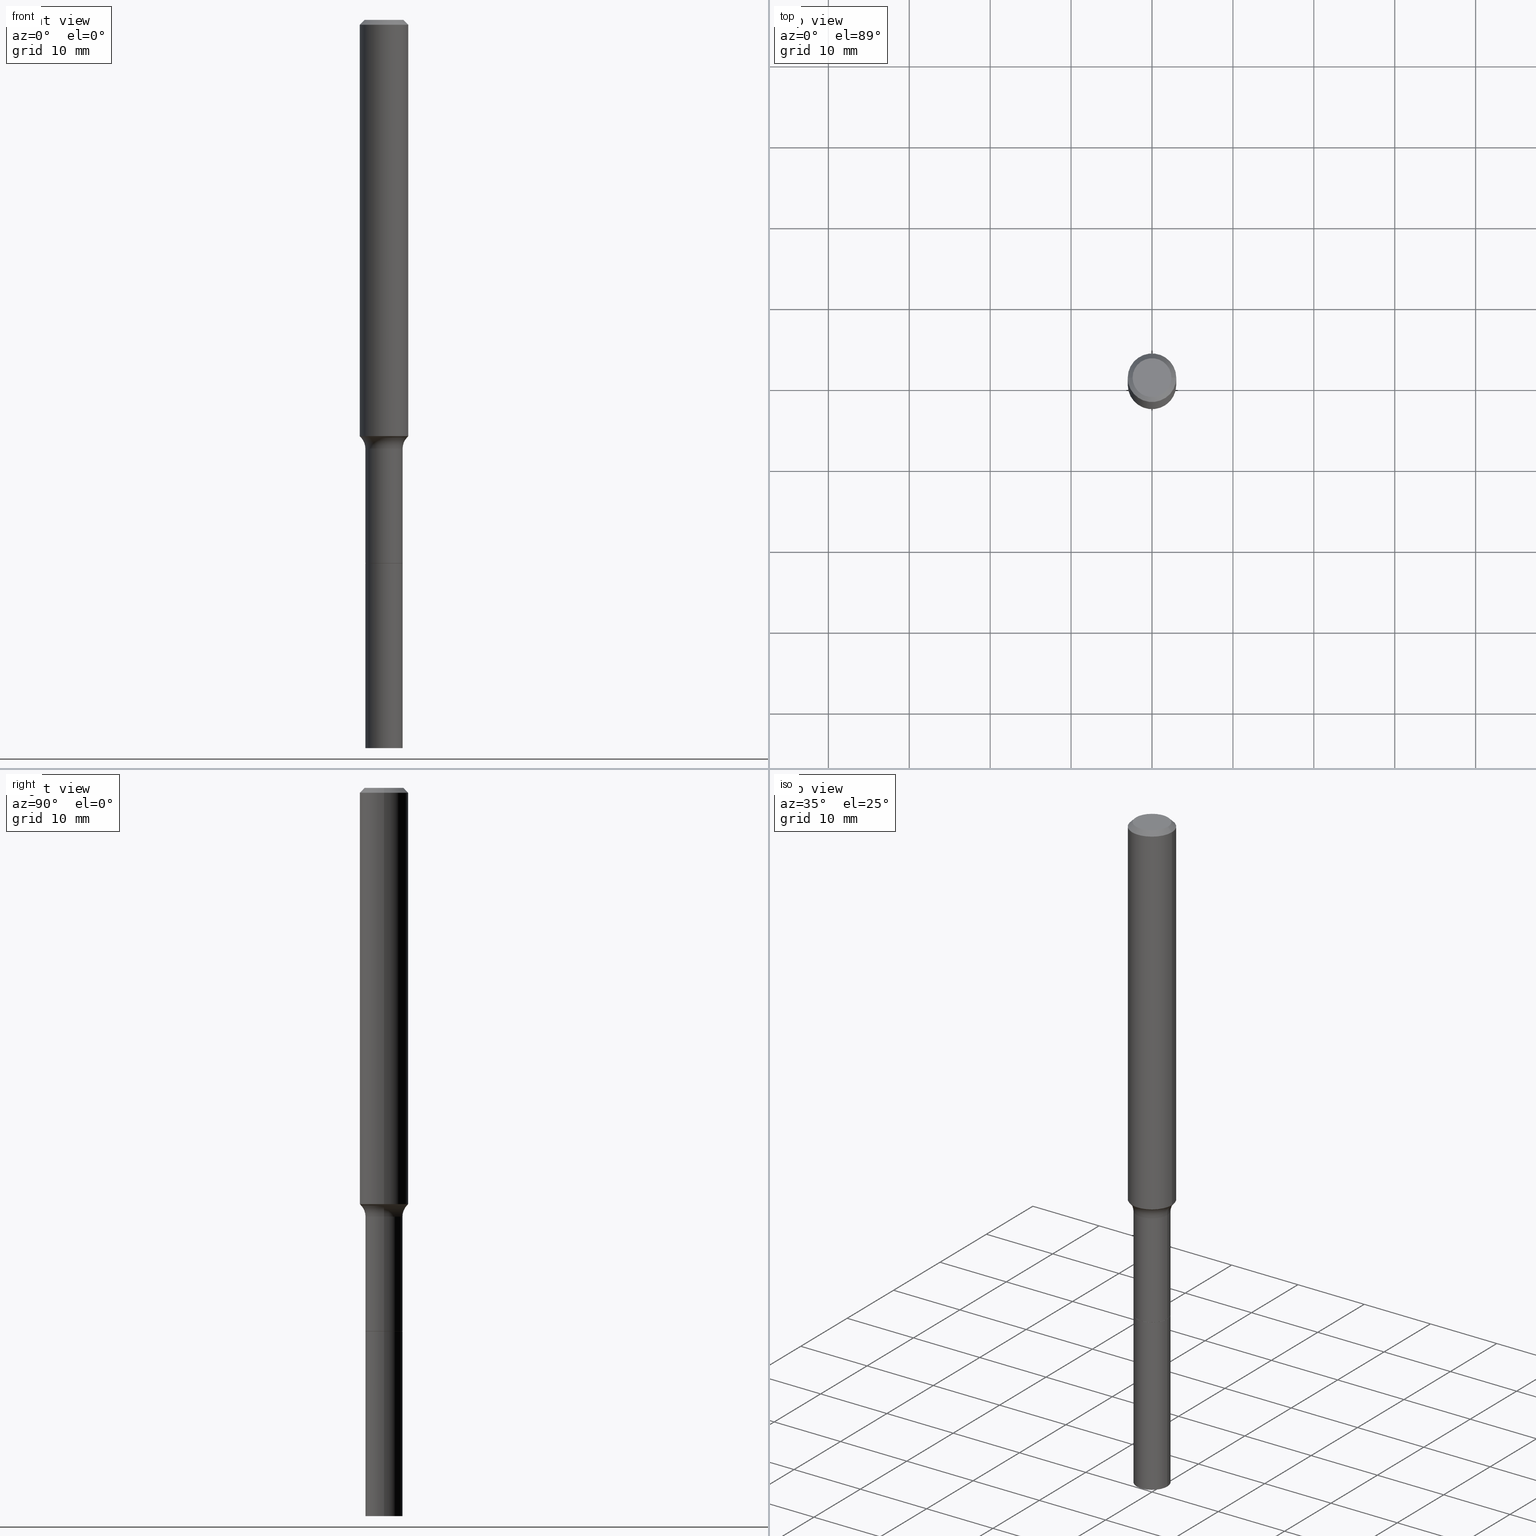
[diagram: canonical four-view strip — front | top / right | iso, engineering-drawing reading convention]
A machine part, canonical four-view strip (front | top / right | iso — engineering-drawing reading convention). The complete STEP part file that produces these views, byte-faithful:
ISO-10303-21;
HEADER;
FILE_DESCRIPTION (( 'STEP AP203' ),
    '1' );
FILE_NAME ('67832.STEP',
    '2025-04-01T15:31:24',
    ( '' ),
    ( '' ),
    'SwSTEP 2.0',
    'SolidWorks 2024',
    '' );
FILE_SCHEMA (( 'CONFIG_CONTROL_DESIGN' ));
ENDSEC;

DATA;
#1 = EDGE_LOOP ( 'NONE', ( #146, #235, #316, #164 ) ) ;
#2 = EDGE_CURVE ( 'NONE', #284, #469, #177, .T. ) ;
#3 = AXIS2_PLACEMENT_3D ( 'NONE', #46, #370, #241 ) ;
#4 = CARTESIAN_POINT ( 'NONE',  ( -0.1181000000000001354, 8.391509709326792818E-16, -5.809262341591050090E-30 ) ) ;
#5 = CIRCLE ( 'NONE', #248, 0.1181000000000002603 ) ;
#6 = VECTOR ( 'NONE', #412, 39.37007874015748143 ) ;
#7 = ORIENTED_EDGE ( 'NONE', *, *, #75, .F. ) ;
#8 = FACE_OUTER_BOUND ( 'NONE', #160, .T. ) ;
#9 = APPROVAL ( #175, 'UNSPECIFIED' ) ;
#10 = FACE_OUTER_BOUND ( 'NONE', #1, .T. ) ;
#11 = ORIENTED_EDGE ( 'NONE', *, *, #135, .T. ) ;
#12 = APPLICATION_PROTOCOL_DEFINITION ( 'international standard', 'config_control_design', 1994, #387 ) ;
#13 = DIRECTION ( 'NONE',  ( -1.000000000000000000, 6.982962677686267499E-15, 0.000000000000000000 ) ) ;
#14 = EDGE_CURVE ( 'NONE', #188, #185, #499, .T. ) ;
#15 = EDGE_LOOP ( 'NONE', ( #250, #478, #154, #506 ) ) ;
#16 = DIRECTION ( 'NONE',  ( 1.000000000000000000, -6.982962677686260400E-15, 0.000000000000000000 ) ) ;
#17 = DIRECTION ( 'NONE',  ( -2.445468806185136597E-29, 3.491481338843145583E-15, 1.000000000000000000 ) ) ;
#18 = DIRECTION ( 'NONE',  ( 0.6819983600624984765, -2.208861293262475014E-15, 0.7313537016191704598 ) ) ;
#19 = CIRCLE ( 'NONE', #403, 0.09055000000000022753 ) ;
#20 = CARTESIAN_POINT ( 'NONE',  ( 8.665029620955794069E-29, -1.237136582792291707E-14, -3.543299999999999894 ) ) ;
#21 = DIRECTION ( 'NONE',  ( 1.000000000000000000, -6.982962677686267499E-15, 0.000000000000000000 ) ) ;
#22 = FACE_OUTER_BOUND ( 'NONE', #435, .T. ) ;
#23 = ORIENTED_EDGE ( 'NONE', *, *, #75, .T. ) ;
#24 = EDGE_CURVE ( 'NONE', #239, #433, #440, .T. ) ;
#25 = CONICAL_SURFACE ( 'NONE', #358, 0.1181000000000000105, 0.7853981633974463916 ) ;
#26 = VECTOR ( 'NONE', #293, 39.37007874015748143 ) ;
#27 = CARTESIAN_POINT ( 'NONE',  ( 0.09055000000000022753, -1.300367309838740854E-14, -3.543299999999999894 ) ) ;
#28 = EDGE_CURVE ( 'NONE', #224, #464, #210, .T. ) ;
#29 = ORIENTED_EDGE ( 'NONE', *, *, #355, .T. ) ;
#30 = CC_DESIGN_PERSON_AND_ORGANIZATION_ASSIGNMENT ( #113, #69, ( #56 ) ) ;
#31 = PERSON_AND_ORGANIZATION ( #351, #222 ) ;
#32 = VECTOR ( 'NONE', #514, 39.37007874015748143 ) ;
#33 = AXIS2_PLACEMENT_3D ( 'NONE', #410, #38, #348 ) ;
#34 = APPROVAL ( #144, 'UNSPECIFIED' ) ;
#35 = ORIENTED_EDGE ( 'NONE', *, *, #151, .T. ) ;
#36 = AXIS2_PLACEMENT_3D ( 'NONE', #109, #148, #317 ) ;
#37 = FACE_OUTER_BOUND ( 'NONE', #74, .T. ) ;
#38 = DIRECTION ( 'NONE',  ( -6.982962677686266711E-15, -1.000000000000000000, 3.491481338843145583E-15 ) ) ;
#39 = ORIENTED_EDGE ( 'NONE', *, *, #186, .T. ) ;
#40 = CARTESIAN_POINT ( 'NONE',  ( 0.000000000000000000, 0.000000000000000000, 0.000000000000000000 ) ) ;
#41 = DIRECTION ( 'NONE',  ( 1.000000000000000000, -6.982962677686260400E-15, 0.000000000000000000 ) ) ;
#42 = ORIENTED_EDGE ( 'NONE', *, *, #28, .F. ) ;
#43 = CARTESIAN_POINT ( 'NONE',  ( 6.466553164195356287E-29, -9.232524104302930594E-15, -2.644299999999999873 ) ) ;
#44 = ORIENTED_EDGE ( 'NONE', *, *, #369, .F. ) ;
#45 = AXIS2_PLACEMENT_3D ( 'NONE', #201, #17, #482 ) ;
#46 = CARTESIAN_POINT ( 'NONE',  ( 6.466553164195356287E-29, -9.232524104302930594E-15, -2.644299999999999873 ) ) ;
#47 = AXIS2_PLACEMENT_3D ( 'NONE', #404, #134, #451 ) ;
#48 = FACE_OUTER_BOUND ( 'NONE', #279, .T. ) ;
#49 = ORIENTED_EDGE ( 'NONE', *, *, #14, .T. ) ;
#50 = EDGE_CURVE ( 'NONE', #185, #224, #343, .T. ) ;
#51 = EDGE_LOOP ( 'NONE', ( #515, #408, #401, #472 ) ) ;
#52 = DIRECTION ( 'NONE',  ( -2.445468806185136597E-29, 3.491481338843145583E-15, 1.000000000000000000 ) ) ;
#53 = LINE ( 'NONE', #128, #26 ) ;
#54 = VERTEX_POINT ( 'NONE', #307 ) ;
#55 = CIRCLE ( 'NONE', #350, 0.09005000000000000504 ) ;
#56 = SECURITY_CLASSIFICATION ( '', '', #147 ) ;
#57 = CARTESIAN_POINT ( 'NONE',  ( 5.101981570344049922E-29, -7.284277517228453725E-15, -2.086299999999999599 ) ) ;
#58 = PLANE ( 'NONE',  #99 ) ;
#59 = VECTOR ( 'NONE', #138, 39.37007874015748143 ) ;
#60 = LOCAL_TIME ( 11, 31, 24.00000000000000000, #265 ) ;
#61 = ADVANCED_FACE ( 'NONE', ( #439 ), #82, .T. ) ;
#62 = CARTESIAN_POINT ( 'NONE',  ( 5.101981570344049922E-29, -7.284277517228453725E-15, -2.086299999999999599 ) ) ;
#63 = CARTESIAN_POINT ( 'NONE',  ( 6.466553164195356287E-29, -9.232524104302930594E-15, -2.644299999999999873 ) ) ;
#64 = DIRECTION ( 'NONE',  ( 1.000000000000000000, -6.982962677686270655E-15, 0.000000000000000000 ) ) ;
#65 = AXIS2_PLACEMENT_3D ( 'NONE', #72, #84, #415 ) ;
#66 = VECTOR ( 'NONE', #142, 39.37007874015748854 ) ;
#67 = CC_DESIGN_PERSON_AND_ORGANIZATION_ASSIGNMENT ( #373, #498, ( #500 ) ) ;
#68 = ORIENTED_EDGE ( 'NONE', *, *, #288, .T. ) ;
#69 = PERSON_AND_ORGANIZATION_ROLE ( 'classification_officer' ) ;
#70 = CARTESIAN_POINT ( 'NONE',  ( 7.545787641473140628E-46, -1.077338491108201769E-31, -3.085620075131671975E-17 ) ) ;
#71 = ORIENTED_EDGE ( 'NONE', *, *, #304, .T. ) ;
#72 = CARTESIAN_POINT ( 'NONE',  ( -0.1705499999999999516, -6.072446881389604582E-15, -2.086299999999999599 ) ) ;
#73 = CARTESIAN_POINT ( 'NONE',  ( 0.09005000000000000504, -9.861339893428579057E-15, -2.644299999999999873 ) ) ;
#74 = EDGE_LOOP ( 'NONE', ( #245, #39, #171, #437 ) ) ;
#75 = EDGE_CURVE ( 'NONE', #426, #366, #291, .T. ) ;
#76 = CIRCLE ( 'NONE', #368, 0.09055000000000022753 ) ;
#77 = ORIENTED_EDGE ( 'NONE', *, *, #193, .T. ) ;
#78 = VERTEX_POINT ( 'NONE', #130 ) ;
#79 = EDGE_CURVE ( 'NONE', #224, #78, #311, .T. ) ;
#80 = ORIENTED_EDGE ( 'NONE', *, *, #212, .T. ) ;
#81 = AXIS2_PLACEMENT_3D ( 'NONE', #70, #102, #392 ) ;
#82 = CYLINDRICAL_SURFACE ( 'NONE', #205, 0.09055000000000011651 ) ;
#83 = APPROVAL_DATE_TIME ( #302, #9 ) ;
#84 = DIRECTION ( 'NONE',  ( 7.105427357601001859E-15, 1.000000000000000000, -3.491481338843145583E-15 ) ) ;
#85 = DIRECTION ( 'NONE',  ( -2.445468806185136597E-29, 3.491481338843145583E-15, 1.000000000000000000 ) ) ;
#86 = FACE_OUTER_BOUND ( 'NONE', #207, .T. ) ;
#87 = COORDINATED_UNIVERSAL_TIME_OFFSET ( 5, 0, .BEHIND. ) ;
#88 = LINE ( 'NONE', #256, #6 ) ;
#89 = EDGE_CURVE ( 'NONE', #433, #239, #137, .T. ) ;
#90 = EDGE_LOOP ( 'NONE', ( #393, #29, #80, #184 ) ) ;
#91 = CONICAL_SURFACE ( 'NONE', #388, 0.1120417038704662610, 0.7504915783575617505 ) ;
#92 = VECTOR ( 'NONE', #509, 39.37007874015748143 ) ;
#93 =( NAMED_UNIT ( * ) PLANE_ANGLE_UNIT ( ) SI_UNIT ( $, .RADIAN. ) );
#94 = ORIENTED_EDGE ( 'NONE', *, *, #326, .F. ) ;
#95 = PERSON_AND_ORGANIZATION_ROLE ( 'creator' ) ;
#96 = DATE_AND_TIME ( #217, #197 ) ;
#97 = EDGE_CURVE ( 'NONE', #54, #399, #303, .T. ) ;
#98 = DATE_TIME_ROLE ( 'creation_date' ) ;
#99 = AXIS2_PLACEMENT_3D ( 'NONE', #219, #378, #208 ) ;
#100 = FACE_OUTER_BOUND ( 'NONE', #90, .T. ) ;
#101 = DIRECTION ( 'NONE',  ( 1.000000000000000000, -6.982962677686266711E-15, 4.876176775795936353E-29 ) ) ;
#102 = DIRECTION ( 'NONE',  ( -2.445468806185136597E-29, 3.491481338843145583E-15, 1.000000000000000000 ) ) ;
#103 = APPROVAL_ROLE ( '' ) ;
#104 = EDGE_CURVE ( 'NONE', #284, #396, #272, .T. ) ;
#105 = EDGE_LOOP ( 'NONE', ( #156, #112 ) ) ;
#106 = AXIS2_PLACEMENT_3D ( 'NONE', #448, #253, #490 ) ;
#107 = TOROIDAL_SURFACE ( 'NONE', #129, 0.1705499999999999516, 0.07999999999999996003 ) ;
#108 = APPROVAL ( #312, 'UNSPECIFIED' ) ;
#109 = CARTESIAN_POINT ( 'NONE',  ( 6.466553164195356287E-29, -9.232524104302930594E-15, -2.644299999999999873 ) ) ;
#110 = EDGE_LOOP ( 'NONE', ( #120, #11, #68, #377 ) ) ;
#111 = CARTESIAN_POINT ( 'NONE',  ( -0.09005000000000000504, -8.590031143576848647E-15, -2.644299999999999873 ) ) ;
#112 = ORIENTED_EDGE ( 'NONE', *, *, #97, .T. ) ;
#113 = PERSON_AND_ORGANIZATION ( #351, #222 ) ;
#114 = ADVANCED_FACE ( 'NONE', ( #86 ), #25, .T. ) ;
#115 = CARTESIAN_POINT ( 'NONE',  ( 0.09054999999999997773, -6.323072704644912724E-16, 4.415378070483218706E-30 ) ) ;
#116 = ORIENTED_EDGE ( 'NONE', *, *, #97, .F. ) ;
#117 = FACE_OUTER_BOUND ( 'NONE', #336, .T. ) ;
#118 = AXIS2_PLACEMENT_3D ( 'NONE', #227, #356, #505 ) ;
#119 = CIRCLE ( 'NONE', #486, 0.1120417038704662610 ) ;
#120 = ORIENTED_EDGE ( 'NONE', *, *, #50, .F. ) ;
#121 = ADVANCED_FACE ( 'NONE', ( #215 ), #484, .T. ) ;
#122 = ORIENTED_EDGE ( 'NONE', *, *, #212, .F. ) ;
#123 = CARTESIAN_POINT ( 'NONE',  ( 0.000000000000000000, 0.000000000000000000, 0.000000000000000000 ) ) ;
#124 = DIRECTION ( 'NONE',  ( -1.000000000000000000, 6.982962677686265922E-15, -4.876176775795935793E-29 ) ) ;
#125 = DIRECTION ( 'NONE',  ( -2.445468806185136877E-29, 3.491481338843145188E-15, 1.000000000000000000 ) ) ;
#126 = DIRECTION ( 'NONE',  ( -2.445468806185136597E-29, 3.491481338843145583E-15, 1.000000000000000000 ) ) ;
#127 = CYLINDRICAL_SURFACE ( 'NONE', #47, 0.09055000000000011651 ) ;
#128 = CARTESIAN_POINT ( 'NONE',  ( 0.09055000000000011651, -9.864831374767423641E-15, -2.644299999999999873 ) ) ;
#129 = AXIS2_PLACEMENT_3D ( 'NONE', #62, #226, #349 ) ;
#130 = CARTESIAN_POINT ( 'NONE',  ( 0.09055000000000000548, -9.863085634098001349E-15, -2.643799999999999706 ) ) ;
#131 = CARTESIAN_POINT ( 'NONE',  ( -0.09055000000000000548, -1.015854851888215298E-14, -2.644299999999999873 ) ) ;
#132 = FACE_OUTER_BOUND ( 'NONE', #365, .T. ) ;
#133 = CARTESIAN_POINT ( 'NONE',  ( 0.1120417038704662610, -7.876165789917910657E-15, -2.031740131194999854 ) ) ;
#134 = DIRECTION ( 'NONE',  ( -2.445468806185136597E-29, 3.491481338843145583E-15, 1.000000000000000000 ) ) ;
#135 = EDGE_CURVE ( 'NONE', #185, #188, #55, .T. ) ;
#136 = DIRECTION ( 'NONE',  ( -2.445468806185136597E-29, 3.491481338843145583E-15, 1.000000000000000000 ) ) ;
#137 = CIRCLE ( 'NONE', #475, 0.1181000000000000105 ) ;
#138 = DIRECTION ( 'NONE',  ( -0.7071067811864267805, 7.493145998869918709E-15, 0.7071067811866682540 ) ) ;
#139 = AXIS2_PLACEMENT_3D ( 'NONE', #259, #295, #447 ) ;
#140 = DIRECTION ( 'NONE',  ( 1.000000000000000000, -6.982962677686265922E-15, 4.876176775795935793E-29 ) ) ;
#141 = EDGE_CURVE ( 'NONE', #78, #224, #159, .T. ) ;
#142 = DIRECTION ( 'NONE',  ( -0.6819983600624984765, 7.399397606724286576E-15, 0.7313537016191704598 ) ) ;
#143 =( GEOMETRIC_REPRESENTATION_CONTEXT ( 3 ) GLOBAL_UNCERTAINTY_ASSIGNED_CONTEXT ( ( #200 ) ) GLOBAL_UNIT_ASSIGNED_CONTEXT ( ( #488, #93, #495 ) ) REPRESENTATION_CONTEXT ( 'NONE', 'WORKASPACE' ) );
#144 = APPROVAL_STATUS ( 'not_yet_approved' ) ;
#145 = ADVANCED_FACE ( 'NONE', ( #37 ), #249, .T. ) ;
#146 = ORIENTED_EDGE ( 'NONE', *, *, #304, .F. ) ;
#147 = SECURITY_CLASSIFICATION_LEVEL ( 'unclassified' ) ;
#148 = DIRECTION ( 'NONE',  ( -2.445468806185136597E-29, 3.491481338843145583E-15, 1.000000000000000000 ) ) ;
#149 = CLOSED_SHELL ( 'NONE', ( #121, #394, #436, #234, #496, #204, #422, #346, #170, #145, #114, #418, #218, #342 ) ) ;
#150 = AXIS2_PLACEMENT_3D ( 'NONE', #161, #280, #124 ) ;
#151 = EDGE_CURVE ( 'NONE', #78, #502, #194, .T. ) ;
#152 = ORIENTED_EDGE ( 'NONE', *, *, #326, .T. ) ;
#153 = CARTESIAN_POINT ( 'NONE',  ( 4.952669569388828117E-29, -7.071099551644942369E-15, -2.025243403989624102 ) ) ;
#154 = ORIENTED_EDGE ( 'NONE', *, *, #446, .F. ) ;
#155 = DIRECTION ( 'NONE',  ( -2.445468806185136597E-29, 3.491481338843145583E-15, 1.000000000000000000 ) ) ;
#156 = ORIENTED_EDGE ( 'NONE', *, *, #313, .T. ) ;
#157 = PLANE ( 'NONE',  #150 ) ;
#158 = DESIGN_CONTEXT ( 'detailed design', #458, 'design' ) ;
#159 = CIRCLE ( 'NONE', #118, 0.09055000000000000548 ) ;
#160 = EDGE_LOOP ( 'NONE', ( #116, #363, #400, #518 ) ) ;
#161 = CARTESIAN_POINT ( 'NONE',  ( 3.772893820736570314E-46, -5.386692455541008845E-32, -1.542810037565835988E-17 ) ) ;
#162 = ADVANCED_FACE ( 'NONE', ( #398 ), #198, .F. ) ;
#163 = CARTESIAN_POINT ( 'NONE',  ( 8.665029620955794069E-29, -1.237136582792291707E-14, -3.543299999999999894 ) ) ;
#164 = ORIENTED_EDGE ( 'NONE', *, *, #186, .F. ) ;
#165 = APPROVAL_ROLE ( '' ) ;
#166 = CARTESIAN_POINT ( 'NONE',  ( 0.09055000000000000548, -9.864831374767423641E-15, -2.644299999999999873 ) ) ;
#167 = DIRECTION ( 'NONE',  ( 1.000000000000000000, -6.982962677686269077E-15, 4.883557194083113462E-29 ) ) ;
#168 = CARTESIAN_POINT ( 'NONE',  ( 6.466553164195356287E-29, -9.232524104302930594E-15, -2.644299999999999873 ) ) ;
#169 = VECTOR ( 'NONE', #289, 39.37007874015748143 ) ;
#170 = ADVANCED_FACE ( 'NONE', ( #10 ), #91, .T. ) ;
#171 = ORIENTED_EDGE ( 'NONE', *, *, #310, .T. ) ;
#172 = DIRECTION ( 'NONE',  ( -2.445468806185136597E-29, 3.491481338843145583E-15, 1.000000000000000000 ) ) ;
#173 = DIRECTION ( 'NONE',  ( -2.438088387897960049E-29, 3.491481338843145188E-15, 1.000000000000000000 ) ) ;
#174 = DIRECTION ( 'NONE',  ( -2.445468806185136597E-29, 3.491481338843145583E-15, 1.000000000000000000 ) ) ;
#175 = APPROVAL_STATUS ( 'not_yet_approved' ) ;
#176 = CARTESIAN_POINT ( 'NONE',  ( -0.09055000000000000548, -7.614131493200209369E-15, -2.643799999999999706 ) ) ;
#177 = LINE ( 'NONE', #133, #381 ) ;
#178 = EDGE_CURVE ( 'NONE', #473, #433, #480, .T. ) ;
#179 = PLANE ( 'NONE',  #180 ) ;
#180 = AXIS2_PLACEMENT_3D ( 'NONE', #299, #173, #140 ) ;
#181 = CARTESIAN_POINT ( 'NONE',  ( 6.466553164195356287E-29, -9.232524104302930594E-15, -2.644299999999999873 ) ) ;
#182 = APPROVAL_DATE_TIME ( #262, #34 ) ;
#183 = CARTESIAN_POINT ( 'NONE',  ( 0.000000000000000000, 0.000000000000000000, 0.000000000000000000 ) ) ;
#184 = ORIENTED_EDGE ( 'NONE', *, *, #267, .F. ) ;
#185 = VERTEX_POINT ( 'NONE', #111 ) ;
#186 = EDGE_CURVE ( 'NONE', #473, #469, #5, .T. ) ;
#187 = LINE ( 'NONE', #233, #455 ) ;
#188 = VERTEX_POINT ( 'NONE', #73 ) ;
#189 = DATE_TIME_ROLE ( 'classification_date' ) ;
#190 = APPROVAL_PERSON_ORGANIZATION ( #31, #34, #354 ) ;
#191 = ORIENTED_EDGE ( 'NONE', *, *, #288, .F. ) ;
#192 = LINE ( 'NONE', #462, #66 ) ;
#193 = EDGE_CURVE ( 'NONE', #399, #433, #278, .T. ) ;
#194 = LINE ( 'NONE', #115, #32 ) ;
#195 = CARTESIAN_POINT ( 'NONE',  ( 0.1181000000000000105, -8.926936027602935883E-16, -0.02362000000000015823 ) ) ;
#196 = EDGE_LOOP ( 'NONE', ( #49, #332, #329, #191 ) ) ;
#197 = LOCAL_TIME ( 11, 31, 24.00000000000000000, #270 ) ;
#198 = PLANE ( 'NONE',  #3 ) ;
#199 = ORIENTED_EDGE ( 'NONE', *, *, #362, .F. ) ;
#200 = UNCERTAINTY_MEASURE_WITH_UNIT (LENGTH_MEASURE( 1.000000000000000082E-05 ), #488, 'distance_accuracy_value', 'NONE');
#201 = CARTESIAN_POINT ( 'NONE',  ( 0.000000000000000000, 0.000000000000000000, 0.000000000000000000 ) ) ;
#202 = ORIENTED_EDGE ( 'NONE', *, *, #334, .F. ) ;
#203 = EDGE_LOOP ( 'NONE', ( #379, #371, #7, #360 ) ) ;
#204 = ADVANCED_FACE ( 'NONE', ( #323 ), #430, .T. ) ;
#205 = AXIS2_PLACEMENT_3D ( 'NONE', #168, #52, #374 ) ;
#206 = VECTOR ( 'NONE', #324, 39.37007874015748143 ) ;
#207 = EDGE_LOOP ( 'NONE', ( #202, #428, #77, #225 ) ) ;
#208 = DIRECTION ( 'NONE',  ( -1.000000000000000000, 6.982962677686265922E-15, -4.876176775795935793E-29 ) ) ;
#209 = CARTESIAN_POINT ( 'NONE',  ( 0.1181000000000000105, -9.071566814582239172E-16, -0.02362000000000015823 ) ) ;
#210 = LINE ( 'NONE', #452, #169 ) ;
#211 = DIRECTION ( 'NONE',  ( 1.000000000000000000, 0.000000000000000000, 0.000000000000000000 ) ) ;
#212 = EDGE_CURVE ( 'NONE', #464, #502, #367, .T. ) ;
#213 = CARTESIAN_POINT ( 'NONE',  ( 7.545787641473140628E-46, -1.077338491108201769E-31, -3.085620075131671975E-17 ) ) ;
#214 = AXIS2_PLACEMENT_3D ( 'NONE', #123, #337, #211 ) ;
#215 = FACE_OUTER_BOUND ( 'NONE', #196, .T. ) ;
#216 = ORIENTED_EDGE ( 'NONE', *, *, #2, .F. ) ;
#217 = CALENDAR_DATE ( 2025, 1, 4 ) ;
#218 = ADVANCED_FACE ( 'NONE', ( #132 ), #179, .F. ) ;
#219 = CARTESIAN_POINT ( 'NONE',  ( 8.665029620955794069E-29, -1.237136582792291707E-14, -3.543299999999999894 ) ) ;
#220 = ORIENTED_EDGE ( 'NONE', *, *, #251, .T. ) ;
#221 = CARTESIAN_POINT ( 'NONE',  ( -0.1181000000000002603, -6.231948580712261806E-15, -2.025243403989624102 ) ) ;
#222 = ORGANIZATION ( 'UNSPECIFIED', 'UNSPECIFIED', '' ) ;
#223 = CC_DESIGN_APPROVAL ( #34, ( #56 ) ) ;
#224 = VERTEX_POINT ( 'NONE', #176 ) ;
#225 = ORIENTED_EDGE ( 'NONE', *, *, #89, .T. ) ;
#226 = DIRECTION ( 'NONE',  ( -2.445468806185136597E-29, 3.491481338843145583E-15, 1.000000000000000000 ) ) ;
#227 = CARTESIAN_POINT ( 'NONE',  ( 6.465330429792263485E-29, -9.230778363633508302E-15, -2.643799999999999706 ) ) ;
#228 = VECTOR ( 'NONE', #517, 39.37007874015748143 ) ;
#229 = CARTESIAN_POINT ( 'NONE',  ( 0.1120417038704663026, -7.876165789917910657E-15, -2.031740131194999854 ) ) ;
#230 = VECTOR ( 'NONE', #125, 39.37007874015748143 ) ;
#231 = CONICAL_SURFACE ( 'NONE', #305, 0.09005000000000000504, 0.7853981633972775267 ) ;
#232 = CARTESIAN_POINT ( 'NONE',  ( -0.09054999999999993610, -7.614131493200210946E-15, -2.086299999999999599 ) ) ;
#233 = CARTESIAN_POINT ( 'NONE',  ( 0.09005000000000000504, -9.861339893428579057E-15, -2.644299999999999873 ) ) ;
#234 = ADVANCED_FACE ( 'NONE', ( #308 ), #330, .T. ) ;
#235 = ORIENTED_EDGE ( 'NONE', *, *, #271, .T. ) ;
#236 = ORIENTED_EDGE ( 'NONE', *, *, #104, .T. ) ;
#237 = DIRECTION ( 'NONE',  ( 1.000000000000000000, -6.982962677686266711E-15, 4.876176775795935793E-29 ) ) ;
#238 = AXIS2_PLACEMENT_3D ( 'NONE', #294, #136, #483 ) ;
#239 = VERTEX_POINT ( 'NONE', #209 ) ;
#240 = FACE_OUTER_BOUND ( 'NONE', #51, .T. ) ;
#241 = DIRECTION ( 'NONE',  ( -1.000000000000000000, 6.982962677686265922E-15, -4.876176775795935793E-29 ) ) ;
#242 = ORIENTED_EDGE ( 'NONE', *, *, #507, .T. ) ;
#243 = PRODUCT_DEFINITION_SHAPE ( 'NONE', 'NONE',  #309 ) ;
#244 = CARTESIAN_POINT ( 'NONE',  ( 0.000000000000000000, 0.000000000000000000, 0.000000000000000000 ) ) ;
#245 = ORIENTED_EDGE ( 'NONE', *, *, #178, .F. ) ;
#246 = PERSON_AND_ORGANIZATION ( #351, #222 ) ;
#247 = CARTESIAN_POINT ( 'NONE',  ( -0.1120417038704663026, -6.297678565572625919E-15, -2.031740131194999854 ) ) ;
#248 = AXIS2_PLACEMENT_3D ( 'NONE', #153, #275, #427 ) ;
#249 = CYLINDRICAL_SURFACE ( 'NONE', #344, 0.1181000000000001354 ) ;
#250 = ORIENTED_EDGE ( 'NONE', *, *, #141, .T. ) ;
#251 = EDGE_CURVE ( 'NONE', #481, #426, #53, .T. ) ;
#252 = DIRECTION ( 'NONE',  ( 1.000000000000000000, -6.982962677686277755E-15, 0.000000000000000000 ) ) ;
#253 = DIRECTION ( 'NONE',  ( -2.445468806185136597E-29, 3.491481338843145583E-15, 1.000000000000000000 ) ) ;
#254 = DIRECTION ( 'NONE',  ( 2.445468806185136597E-29, -3.491481338843145583E-15, -1.000000000000000000 ) ) ;
#255 = CALENDAR_DATE ( 2025, 1, 4 ) ;
#256 = CARTESIAN_POINT ( 'NONE',  ( -0.09055000000000011651, -8.589127657072158949E-15, -2.644299999999999873 ) ) ;
#257 = AXIS2_PLACEMENT_3D ( 'NONE', #297, #449, #341 ) ;
#258 = ORIENTED_EDGE ( 'NONE', *, *, #380, .F. ) ;
#259 = CARTESIAN_POINT ( 'NONE',  ( 4.952669569388828117E-29, -7.071099551644942369E-15, -2.025243403989624102 ) ) ;
#260 = ADVANCED_FACE ( 'NONE', ( #444 ), #127, .T. ) ;
#261 = DIRECTION ( 'NONE',  ( 1.000000000000000000, -6.982962677686260400E-15, 0.000000000000000000 ) ) ;
#262 = DATE_AND_TIME ( #340, #476 ) ;
#263 = APPROVAL_DATE_TIME ( #96, #108 ) ;
#264 = CIRCLE ( 'NONE', #65, 0.07999999999999996003 ) ;
#265 = COORDINATED_UNIVERSAL_TIME_OFFSET ( 5, 0, .BEHIND. ) ;
#266 = DIRECTION ( 'NONE',  ( -2.445468806185136597E-29, 3.491481338843145583E-15, 1.000000000000000000 ) ) ;
#267 = EDGE_CURVE ( 'NONE', #284, #502, #345, .T. ) ;
#268 = CARTESIAN_POINT ( 'NONE',  ( 0.09054999999999993610, -7.916584787692945195E-15, -2.086299999999999599 ) ) ;
#269 = DIRECTION ( 'NONE',  ( 1.000000000000000000, -6.982962677686260400E-15, 0.000000000000000000 ) ) ;
#270 = COORDINATED_UNIVERSAL_TIME_OFFSET ( 5, 0, .BEHIND. ) ;
#271 = EDGE_CURVE ( 'NONE', #396, #284, #119, .T. ) ;
#272 = CIRCLE ( 'NONE', #257, 0.1120417038704662610 ) ;
#273 = CONICAL_SURFACE ( 'NONE', #306, 0.1181000000000000105, 0.7853981633974463916 ) ;
#274 = VERTEX_POINT ( 'NONE', #391 ) ;
#275 = DIRECTION ( 'NONE',  ( -2.445468806185136597E-29, 3.491481338843145583E-15, 1.000000000000000000 ) ) ;
#276 = EDGE_LOOP ( 'NONE', ( #23, #152 ) ) ;
#277 = FACE_OUTER_BOUND ( 'NONE', #105, .T. ) ;
#278 = LINE ( 'NONE', #361, #228 ) ;
#279 = EDGE_LOOP ( 'NONE', ( #477, #322, #417, #405 ) ) ;
#280 = DIRECTION ( 'NONE',  ( 2.438088387897960049E-29, -3.491481338843145188E-15, -1.000000000000000000 ) ) ;
#281 = AXIS2_PLACEMENT_3D ( 'NONE', #181, #266, #269 ) ;
#282 = CC_DESIGN_APPROVAL ( #108, ( #500 ) ) ;
#283 = FACE_OUTER_BOUND ( 'NONE', #110, .T. ) ;
#284 = VERTEX_POINT ( 'NONE', #229 ) ;
#285 = DIRECTION ( 'NONE',  ( 1.000000000000000000, -6.982962677686260400E-15, 0.000000000000000000 ) ) ;
#286 = ORIENTED_EDGE ( 'NONE', *, *, #135, .F. ) ;
#287 = DIRECTION ( 'NONE',  ( -2.445468806185136597E-29, 3.491481338843145583E-15, 1.000000000000000000 ) ) ;
#288 = EDGE_CURVE ( 'NONE', #188, #78, #187, .T. ) ;
#289 = DIRECTION ( 'NONE',  ( -2.445468806185136877E-29, 3.491481338843145188E-15, 1.000000000000000000 ) ) ;
#290 = CARTESIAN_POINT ( 'NONE',  ( -0.09447999999999998066, 7.009847083995354710E-16, -3.085620075132147757E-17 ) ) ;
#291 = CIRCLE ( 'NONE', #238, 0.09055000000000000548 ) ;
#292 = LOCAL_TIME ( 11, 31, 24.00000000000000000, #87 ) ;
#293 = DIRECTION ( 'NONE',  ( -2.445468806185136877E-29, 3.491481338843145188E-15, 1.000000000000000000 ) ) ;
#294 = CARTESIAN_POINT ( 'NONE',  ( 6.466553164195356287E-29, -9.232524104302930594E-15, -2.644299999999999873 ) ) ;
#295 = DIRECTION ( 'NONE',  ( -2.445468806185136597E-29, 3.491481338843145583E-15, 1.000000000000000000 ) ) ;
#296 = DIRECTION ( 'NONE',  ( 1.000000000000000000, -6.982962677686260400E-15, 0.000000000000000000 ) ) ;
#297 = CARTESIAN_POINT ( 'NONE',  ( 4.968557113111869591E-29, -7.093782753446066454E-15, -2.031740131194999854 ) ) ;
#298 = PERSON_AND_ORGANIZATION ( #351, #222 ) ;
#299 = CARTESIAN_POINT ( 'NONE',  ( 6.466553164195356287E-29, -9.232524104302930594E-15, -2.644299999999999873 ) ) ;
#300 = CARTESIAN_POINT ( 'NONE',  ( 5.776197320209331911E-31, -8.246878922347565456E-17, -0.02362000000000015823 ) ) ;
#301 = COORDINATED_UNIVERSAL_TIME_OFFSET ( 5, 0, .BEHIND. ) ;
#302 = DATE_AND_TIME ( #255, #292 ) ;
#303 = CIRCLE ( 'NONE', #411, 0.09447999999999998066 ) ;
#304 = EDGE_CURVE ( 'NONE', #396, #473, #192, .T. ) ;
#305 = AXIS2_PLACEMENT_3D ( 'NONE', #43, #331, #285 ) ;
#306 = AXIS2_PLACEMENT_3D ( 'NONE', #372, #479, #13 ) ;
#307 = CARTESIAN_POINT ( 'NONE',  ( 0.09447999999999998066, -7.704367267948739676E-16, -3.085620075131172158E-17 ) ) ;
#308 = FACE_OUTER_BOUND ( 'NONE', #353, .T. ) ;
#309 = PRODUCT_DEFINITION ( 'UNKNOWN', '', #500, #158 ) ;
#310 = EDGE_CURVE ( 'NONE', #469, #239, #352, .T. ) ;
#311 = CIRCLE ( 'NONE', #424, 0.09055000000000000548 ) ;
#312 = APPROVAL_STATUS ( 'not_yet_approved' ) ;
#313 = EDGE_CURVE ( 'NONE', #399, #54, #318, .T. ) ;
#314 = DIRECTION ( 'NONE',  ( -2.445468806185136597E-29, 3.491481338843145583E-15, 1.000000000000000000 ) ) ;
#315 = DIRECTION ( 'NONE',  ( -2.445468806185136597E-29, 3.491481338843145583E-15, 1.000000000000000000 ) ) ;
#316 = ORIENTED_EDGE ( 'NONE', *, *, #2, .T. ) ;
#317 = DIRECTION ( 'NONE',  ( 1.000000000000000000, -6.982962677686277755E-15, 0.000000000000000000 ) ) ;
#318 = CIRCLE ( 'NONE', #81, 0.09447999999999998066 ) ;
#319 = ORIENTED_EDGE ( 'NONE', *, *, #507, .F. ) ;
#320 = CC_DESIGN_SECURITY_CLASSIFICATION ( #56, ( #500 ) ) ;
#321 = DIRECTION ( 'NONE',  ( 1.000000000000000000, -6.982962677686270655E-15, 0.000000000000000000 ) ) ;
#322 = ORIENTED_EDGE ( 'NONE', *, *, #104, .F. ) ;
#323 = FACE_OUTER_BOUND ( 'NONE', #15, .T. ) ;
#324 = DIRECTION ( 'NONE',  ( 0.7071067811865461294, -7.319954787623251312E-15, -0.7071067811865489050 ) ) ;
#325 = ORIENTED_EDGE ( 'NONE', *, *, #79, .T. ) ;
#326 = EDGE_CURVE ( 'NONE', #366, #426, #389, .T. ) ;
#327 =( LENGTH_UNIT ( ) NAMED_UNIT ( * ) SI_UNIT ( $, .METRE. ) );
#328 = DIRECTION ( 'NONE',  ( 1.000000000000000000, -6.982962677686266711E-15, 4.876176775795936353E-29 ) ) ;
#329 = ORIENTED_EDGE ( 'NONE', *, *, #141, .F. ) ;
#330 = CONICAL_SURFACE ( 'NONE', #461, 0.1120417038704662610, 0.7504915783575617505 ) ;
#331 = DIRECTION ( 'NONE',  ( -2.445468806185136597E-29, 3.491481338843145583E-15, 1.000000000000000000 ) ) ;
#332 = ORIENTED_EDGE ( 'NONE', *, *, #50, .T. ) ;
#333 = CYLINDRICAL_SURFACE ( 'NONE', #375, 0.09054999999999997773 ) ;
#334 = EDGE_CURVE ( 'NONE', #54, #239, #468, .T. ) ;
#335 = DIRECTION ( 'NONE',  ( 1.000000000000000000, -6.982962677686267499E-15, 0.000000000000000000 ) ) ;
#336 = EDGE_LOOP ( 'NONE', ( #42, #325, #35, #122 ) ) ;
#337 = DIRECTION ( 'NONE',  ( 0.000000000000000000, 0.000000000000000000, 1.000000000000000000 ) ) ;
#338 = CIRCLE ( 'NONE', #139, 0.1181000000000002603 ) ;
#339 = DIRECTION ( 'NONE',  ( -2.445468806185136597E-29, 3.491481338843145583E-15, 1.000000000000000000 ) ) ;
#340 = CALENDAR_DATE ( 2025, 1, 4 ) ;
#341 = DIRECTION ( 'NONE',  ( 1.000000000000000000, -6.982962677686270655E-15, 0.000000000000000000 ) ) ;
#342 = ADVANCED_FACE ( 'NONE', ( #283 ), #231, .T. ) ;
#343 = LINE ( 'NONE', #491, #59 ) ;
#344 = AXIS2_PLACEMENT_3D ( 'NONE', #244, #395, #328 ) ;
#345 = CIRCLE ( 'NONE', #33, 0.07999999999999996003 ) ;
#346 = ADVANCED_FACE ( 'NONE', ( #48 ), #382, .F. ) ;
#347 = DIRECTION ( 'NONE',  ( -2.445468806185136597E-29, 3.491481338843145583E-15, 1.000000000000000000 ) ) ;
#348 = DIRECTION ( 'NONE',  ( 1.000000000000000000, -6.982962677686275388E-15, 0.000000000000000000 ) ) ;
#349 = DIRECTION ( 'NONE',  ( 1.000000000000000000, -6.982962677686269077E-15, 4.883557194083113462E-29 ) ) ;
#350 = AXIS2_PLACEMENT_3D ( 'NONE', #63, #471, #41 ) ;
#351 = PERSON ( 'UNSPECIFIED', 'UNSPECIFIED', 'UNSPECIFIED', ('UNSPECIFIED'), ('UNSPECIFIED'), ('UNSPECIFIED') ) ;
#352 = LINE ( 'NONE', #357, #92 ) ;
#353 = EDGE_LOOP ( 'NONE', ( #236, #71, #44, #216 ) ) ;
#354 = APPROVAL_ROLE ( '' ) ;
#355 = EDGE_CURVE ( 'NONE', #396, #464, #264, .T. ) ;
#356 = DIRECTION ( 'NONE',  ( -2.445468806185136597E-29, 3.491481338843145583E-15, 1.000000000000000000 ) ) ;
#357 = CARTESIAN_POINT ( 'NONE',  ( 0.1181000000000001354, -8.246878922347490515E-16, 5.758764772215007447E-30 ) ) ;
#358 = AXIS2_PLACEMENT_3D ( 'NONE', #300, #254, #489 ) ;
#359 = AXIS2_PLACEMENT_3D ( 'NONE', #508, #314, #420 ) ;
#360 = ORIENTED_EDGE ( 'NONE', *, *, #251, .F. ) ;
#361 = CARTESIAN_POINT ( 'NONE',  ( -0.1181000000000000105, 7.422191030112725094E-16, -0.02362000000000015823 ) ) ;
#362 = EDGE_CURVE ( 'NONE', #481, #274, #76, .T. ) ;
#363 = ORIENTED_EDGE ( 'NONE', *, *, #334, .T. ) ;
#364 = CC_DESIGN_DATE_AND_TIME_ASSIGNMENT ( #504, #189, ( #56 ) ) ;
#365 = EDGE_LOOP ( 'NONE', ( #384, #286 ) ) ;
#366 = VERTEX_POINT ( 'NONE', #131 ) ;
#367 = CIRCLE ( 'NONE', #106, 0.09054999999999993610 ) ;
#368 = AXIS2_PLACEMENT_3D ( 'NONE', #20, #172, #16 ) ;
#369 = EDGE_CURVE ( 'NONE', #469, #473, #338, .T. ) ;
#370 = DIRECTION ( 'NONE',  ( 2.438088387897960049E-29, -3.491481338843145188E-15, -1.000000000000000000 ) ) ;
#371 = ORIENTED_EDGE ( 'NONE', *, *, #380, .T. ) ;
#372 = CARTESIAN_POINT ( 'NONE',  ( 5.776197320209331911E-31, -8.246878922347565456E-17, -0.02362000000000015823 ) ) ;
#373 = PERSON_AND_ORGANIZATION ( #351, #222 ) ;
#374 = DIRECTION ( 'NONE',  ( 1.000000000000000000, -6.982962677686269077E-15, 0.000000000000000000 ) ) ;
#375 = AXIS2_PLACEMENT_3D ( 'NONE', #40, #287, #237 ) ;
#376 = DIRECTION ( 'NONE',  ( -2.445468806185136597E-29, 3.491481338843145583E-15, 1.000000000000000000 ) ) ;
#377 = ORIENTED_EDGE ( 'NONE', *, *, #79, .F. ) ;
#378 = DIRECTION ( 'NONE',  ( 2.438088387897960049E-29, -3.491481338843145188E-15, -1.000000000000000000 ) ) ;
#379 = ORIENTED_EDGE ( 'NONE', *, *, #362, .T. ) ;
#380 = EDGE_CURVE ( 'NONE', #274, #366, #88, .T. ) ;
#381 = VECTOR ( 'NONE', #18, 39.37007874015748854 ) ;
#382 = TOROIDAL_SURFACE ( 'NONE', #492, 0.1705499999999999516, 0.07999999999999996003 ) ;
#383 = SHAPE_DEFINITION_REPRESENTATION ( #243, #516 ) ;
#384 = ORIENTED_EDGE ( 'NONE', *, *, #14, .F. ) ;
#385 = EDGE_LOOP ( 'NONE', ( #258, #242, #220, #94 ) ) ;
#386 = CALENDAR_DATE ( 2025, 1, 4 ) ;
#387 = APPLICATION_CONTEXT ( 'configuration controlled 3d designs of mechanical parts and assemblies' ) ;
#388 = AXIS2_PLACEMENT_3D ( 'NONE', #474, #155, #321 ) ;
#389 = CIRCLE ( 'NONE', #36, 0.09055000000000000548 ) ;
#390 = ADVANCED_FACE ( 'NONE', ( #22 ), #58, .T. ) ;
#391 = CARTESIAN_POINT ( 'NONE',  ( -0.09055000000000022753, -1.015854851888214982E-14, -3.543299999999999894 ) ) ;
#392 = DIRECTION ( 'NONE',  ( 1.000000000000000000, -6.982962677686267499E-15, 4.875432709231658792E-29 ) ) ;
#393 = ORIENTED_EDGE ( 'NONE', *, *, #271, .F. ) ;
#394 = ADVANCED_FACE ( 'NONE', ( #8 ), #273, .T. ) ;
#395 = DIRECTION ( 'NONE',  ( -2.445468806185136597E-29, 3.491481338843145583E-15, 1.000000000000000000 ) ) ;
#396 = VERTEX_POINT ( 'NONE', #247 ) ;
#397 = CARTESIAN_POINT ( 'NONE',  ( -0.1181000000000000105, -2.737633199501528744E-15, -0.02362000000000015823 ) ) ;
#398 = FACE_OUTER_BOUND ( 'NONE', #276, .T. ) ;
#399 = VERTEX_POINT ( 'NONE', #290 ) ;
#400 = ORIENTED_EDGE ( 'NONE', *, *, #24, .T. ) ;
#401 = ORIENTED_EDGE ( 'NONE', *, *, #24, .F. ) ;
#402 = PERSON_AND_ORGANIZATION_ROLE ( 'creator' ) ;
#403 = AXIS2_PLACEMENT_3D ( 'NONE', #163, #512, #296 ) ;
#404 = CARTESIAN_POINT ( 'NONE',  ( 6.466553164195356287E-29, -9.232524104302930594E-15, -2.644299999999999873 ) ) ;
#405 = ORIENTED_EDGE ( 'NONE', *, *, #446, .T. ) ;
#406 = CARTESIAN_POINT ( 'NONE',  ( 5.776197320209331911E-31, -8.246878922347565456E-17, -0.02362000000000015823 ) ) ;
#407 = CC_DESIGN_PERSON_AND_ORGANIZATION_ASSIGNMENT ( #409, #485, ( #421 ) ) ;
#408 = ORIENTED_EDGE ( 'NONE', *, *, #178, .T. ) ;
#409 = PERSON_AND_ORGANIZATION ( #351, #222 ) ;
#410 = CARTESIAN_POINT ( 'NONE',  ( 0.1705499999999999516, -8.475221801907846847E-15, -2.086299999999999599 ) ) ;
#411 = AXIS2_PLACEMENT_3D ( 'NONE', #213, #339, #487 ) ;
#412 = DIRECTION ( 'NONE',  ( -2.445468806185136877E-29, 3.491481338843145188E-15, 1.000000000000000000 ) ) ;
#413 = LOCAL_TIME ( 11, 31, 24.00000000000000000, #470 ) ;
#414 = CARTESIAN_POINT ( 'NONE',  ( 6.466553164195356287E-29, -9.232524104302930594E-15, -2.644299999999999873 ) ) ;
#415 = DIRECTION ( 'NONE',  ( -1.000000000000000000, 7.105427357601001859E-15, 0.000000000000000000 ) ) ;
#416 = CARTESIAN_POINT ( 'NONE',  ( 4.968557113111869591E-29, -7.093782753446066454E-15, -2.031740131194999854 ) ) ;
#417 = ORIENTED_EDGE ( 'NONE', *, *, #267, .T. ) ;
#418 = ADVANCED_FACE ( 'NONE', ( #277 ), #157, .F. ) ;
#419 = APPROVAL_PERSON_ORGANIZATION ( #501, #108, #103 ) ;
#420 = DIRECTION ( 'NONE',  ( 1.000000000000000000, -6.982962677686261189E-15, 0.000000000000000000 ) ) ;
#421 = PRODUCT ( '67832', '67832', '', ( #438 ) ) ;
#422 = ADVANCED_FACE ( 'NONE', ( #117 ), #333, .T. ) ;
#423 = CALENDAR_DATE ( 2025, 1, 4 ) ;
#424 = AXIS2_PLACEMENT_3D ( 'NONE', #445, #85, #252 ) ;
#425 = AXIS2_PLACEMENT_3D ( 'NONE', #183, #347, #101 ) ;
#426 = VERTEX_POINT ( 'NONE', #166 ) ;
#427 = DIRECTION ( 'NONE',  ( 1.000000000000000000, -6.982962677686265133E-15, 0.000000000000000000 ) ) ;
#428 = ORIENTED_EDGE ( 'NONE', *, *, #313, .F. ) ;
#429 = CC_DESIGN_DATE_AND_TIME_ASSIGNMENT ( #460, #98, ( #309 ) ) ;
#430 = CYLINDRICAL_SURFACE ( 'NONE', #45, 0.09054999999999997773 ) ;
#431 = AXIS2_PLACEMENT_3D ( 'NONE', #414, #126, #261 ) ;
#432 = CC_DESIGN_APPROVAL ( #9, ( #309 ) ) ;
#433 = VERTEX_POINT ( 'NONE', #397 ) ;
#434 = CYLINDRICAL_SURFACE ( 'NONE', #425, 0.1181000000000001354 ) ;
#435 = EDGE_LOOP ( 'NONE', ( #199, #319 ) ) ;
#436 = ADVANCED_FACE ( 'NONE', ( #240 ), #434, .T. ) ;
#437 = ORIENTED_EDGE ( 'NONE', *, *, #89, .F. ) ;
#438 = MECHANICAL_CONTEXT ( 'NONE', #387, 'mechanical' ) ;
#439 = FACE_OUTER_BOUND ( 'NONE', #385, .T. ) ;
#440 = CIRCLE ( 'NONE', #454, 0.1181000000000000105 ) ;
#441 = APPLICATION_PROTOCOL_DEFINITION ( 'international standard', 'config_control_design', 1994, #458 ) ;
#442 = CIRCLE ( 'NONE', #359, 0.09054999999999993610 ) ;
#443 = DIRECTION ( 'NONE',  ( -2.445468806185136597E-29, 3.491481338843145583E-15, 1.000000000000000000 ) ) ;
#444 = FACE_OUTER_BOUND ( 'NONE', #203, .T. ) ;
#445 = CARTESIAN_POINT ( 'NONE',  ( 6.465330429792263485E-29, -9.230778363633508302E-15, -2.643799999999999706 ) ) ;
#446 = EDGE_CURVE ( 'NONE', #502, #464, #442, .T. ) ;
#447 = DIRECTION ( 'NONE',  ( 1.000000000000000000, -6.982962677686265133E-15, 0.000000000000000000 ) ) ;
#448 = CARTESIAN_POINT ( 'NONE',  ( 5.101981570344049922E-29, -7.284277517228453725E-15, -2.086299999999999599 ) ) ;
#449 = DIRECTION ( 'NONE',  ( -2.445468806185136597E-29, 3.491481338843145583E-15, 1.000000000000000000 ) ) ;
#450 = DIMENSIONAL_EXPONENTS ( 1.000000000000000000, 0.000000000000000000, 0.000000000000000000, 0.000000000000000000, 0.000000000000000000, 0.000000000000000000, 0.000000000000000000 ) ;
#451 = DIRECTION ( 'NONE',  ( 1.000000000000000000, -6.982962677686269077E-15, 0.000000000000000000 ) ) ;
#452 = CARTESIAN_POINT ( 'NONE',  ( -0.09054999999999997773, 6.433964472307705601E-16, -4.454095724225815817E-30 ) ) ;
#453 = LENGTH_MEASURE_WITH_UNIT ( LENGTH_MEASURE( 0.02539999999999999897 ), #327 );
#454 = AXIS2_PLACEMENT_3D ( 'NONE', #456, #376, #335 ) ;
#455 = VECTOR ( 'NONE', #466, 39.37007874015748143 ) ;
#456 = CARTESIAN_POINT ( 'NONE',  ( 5.776197320209331911E-31, -8.246878922347565456E-17, -0.02362000000000015823 ) ) ;
#457 = PERSON_AND_ORGANIZATION ( #351, #222 ) ;
#458 = APPLICATION_CONTEXT ( 'configuration controlled 3d designs of mechanical parts and assemblies' ) ;
#459 = DIRECTION ( 'NONE',  ( 1.000000000000000000, -6.982962677686270655E-15, 0.000000000000000000 ) ) ;
#460 = DATE_AND_TIME ( #423, #60 ) ;
#461 = AXIS2_PLACEMENT_3D ( 'NONE', #416, #494, #459 ) ;
#462 = CARTESIAN_POINT ( 'NONE',  ( -0.1120417038704662610, -6.297678565572625919E-15, -2.031740131194999854 ) ) ;
#463 = CARTESIAN_POINT ( 'NONE',  ( 0.1181000000000002603, -7.895787443879692998E-15, -2.025243403989624102 ) ) ;
#464 = VERTEX_POINT ( 'NONE', #232 ) ;
#465 = MANIFOLD_SOLID_BREP ( 'Body-Move/Copy2[2]', #149 ) ;
#466 = DIRECTION ( 'NONE',  ( 0.7071067811864267805, -2.468850131080992517E-15, 0.7071067811866682540 ) ) ;
#467 = MANIFOLD_SOLID_BREP ( 'Body-Move/Copy2[1]', #510 ) ;
#468 = LINE ( 'NONE', #195, #206 ) ;
#469 = VERTEX_POINT ( 'NONE', #463 ) ;
#470 = COORDINATED_UNIVERSAL_TIME_OFFSET ( 5, 0, .BEHIND. ) ;
#471 = DIRECTION ( 'NONE',  ( -2.445468806185136597E-29, 3.491481338843145583E-15, 1.000000000000000000 ) ) ;
#472 = ORIENTED_EDGE ( 'NONE', *, *, #310, .F. ) ;
#473 = VERTEX_POINT ( 'NONE', #221 ) ;
#474 = CARTESIAN_POINT ( 'NONE',  ( 4.968557113111869591E-29, -7.093782753446066454E-15, -2.031740131194999854 ) ) ;
#475 = AXIS2_PLACEMENT_3D ( 'NONE', #406, #174, #21 ) ;
#476 = LOCAL_TIME ( 11, 31, 24.00000000000000000, #301 ) ;
#477 = ORIENTED_EDGE ( 'NONE', *, *, #355, .F. ) ;
#478 = ORIENTED_EDGE ( 'NONE', *, *, #28, .T. ) ;
#479 = DIRECTION ( 'NONE',  ( 2.445468806185136597E-29, -3.491481338843145583E-15, -1.000000000000000000 ) ) ;
#480 = LINE ( 'NONE', #4, #230 ) ;
#481 = VERTEX_POINT ( 'NONE', #27 ) ;
#482 = DIRECTION ( 'NONE',  ( 1.000000000000000000, -6.982962677686266711E-15, 4.876176775795935793E-29 ) ) ;
#483 = DIRECTION ( 'NONE',  ( 1.000000000000000000, -6.982962677686277755E-15, 0.000000000000000000 ) ) ;
#484 = CONICAL_SURFACE ( 'NONE', #281, 0.09005000000000000504, 0.7853981633972775267 ) ;
#485 = PERSON_AND_ORGANIZATION_ROLE ( 'design_owner' ) ;
#486 = AXIS2_PLACEMENT_3D ( 'NONE', #497, #315, #64 ) ;
#487 = DIRECTION ( 'NONE',  ( 1.000000000000000000, -6.982962677686267499E-15, 4.875432709231658792E-29 ) ) ;
#488 =( CONVERSION_BASED_UNIT ( 'INCH', #453 ) LENGTH_UNIT ( ) NAMED_UNIT ( #450 ) );
#489 = DIRECTION ( 'NONE',  ( -1.000000000000000000, 6.982962677686267499E-15, 0.000000000000000000 ) ) ;
#490 = DIRECTION ( 'NONE',  ( 1.000000000000000000, -6.982962677686261189E-15, 0.000000000000000000 ) ) ;
#491 = CARTESIAN_POINT ( 'NONE',  ( -0.09005000000000000504, -8.592680370750960637E-15, -2.644299999999999873 ) ) ;
#492 = AXIS2_PLACEMENT_3D ( 'NONE', #57, #443, #167 ) ;
#493 = PRODUCT_RELATED_PRODUCT_CATEGORY ( 'detail', '', ( #421 ) ) ;
#494 = DIRECTION ( 'NONE',  ( -2.445468806185136597E-29, 3.491481338843145583E-15, 1.000000000000000000 ) ) ;
#495 =( NAMED_UNIT ( * ) SI_UNIT ( $, .STERADIAN. ) SOLID_ANGLE_UNIT ( ) );
#496 = ADVANCED_FACE ( 'NONE', ( #100 ), #107, .F. ) ;
#497 = CARTESIAN_POINT ( 'NONE',  ( 4.968557113111869591E-29, -7.093782753446066454E-15, -2.031740131194999854 ) ) ;
#498 = PERSON_AND_ORGANIZATION_ROLE ( 'design_supplier' ) ;
#499 = CIRCLE ( 'NONE', #431, 0.09005000000000000504 ) ;
#500 = PRODUCT_DEFINITION_FORMATION_WITH_SPECIFIED_SOURCE ( 'ANY', '', #421, .NOT_KNOWN. ) ;
#501 = PERSON_AND_ORGANIZATION ( #351, #222 ) ;
#502 = VERTEX_POINT ( 'NONE', #268 ) ;
#503 = CC_DESIGN_PERSON_AND_ORGANIZATION_ASSIGNMENT ( #246, #402, ( #309 ) ) ;
#504 = DATE_AND_TIME ( #386, #413 ) ;
#505 = DIRECTION ( 'NONE',  ( 1.000000000000000000, -6.982962677686277755E-15, 0.000000000000000000 ) ) ;
#506 = ORIENTED_EDGE ( 'NONE', *, *, #151, .F. ) ;
#507 = EDGE_CURVE ( 'NONE', #274, #481, #19, .T. ) ;
#508 = CARTESIAN_POINT ( 'NONE',  ( 5.101981570344049922E-29, -7.284277517228453725E-15, -2.086299999999999599 ) ) ;
#509 = DIRECTION ( 'NONE',  ( -2.445468806185136877E-29, 3.491481338843145188E-15, 1.000000000000000000 ) ) ;
#510 = CLOSED_SHELL ( 'NONE', ( #260, #390, #61, #162 ) ) ;
#511 = CC_DESIGN_PERSON_AND_ORGANIZATION_ASSIGNMENT ( #457, #95, ( #500 ) ) ;
#512 = DIRECTION ( 'NONE',  ( -2.445468806185136597E-29, 3.491481338843145583E-15, 1.000000000000000000 ) ) ;
#513 = APPROVAL_PERSON_ORGANIZATION ( #298, #9, #165 ) ;
#514 = DIRECTION ( 'NONE',  ( -2.445468806185136877E-29, 3.491481338843145188E-15, 1.000000000000000000 ) ) ;
#515 = ORIENTED_EDGE ( 'NONE', *, *, #369, .T. ) ;
#516 = ADVANCED_BREP_SHAPE_REPRESENTATION ( '67832', ( #467, #465, #214 ), #143 ) ;
#517 = DIRECTION ( 'NONE',  ( -0.7071067811865461294, 2.468850131082242072E-15, -0.7071067811865489050 ) ) ;
#518 = ORIENTED_EDGE ( 'NONE', *, *, #193, .F. ) ;
ENDSEC;
END-ISO-10303-21;
